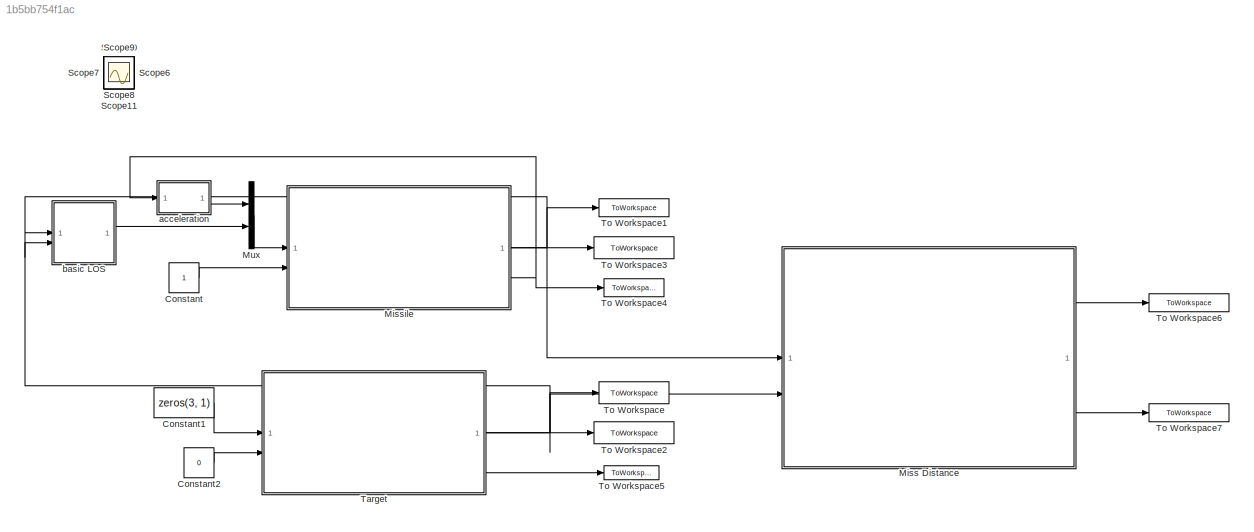
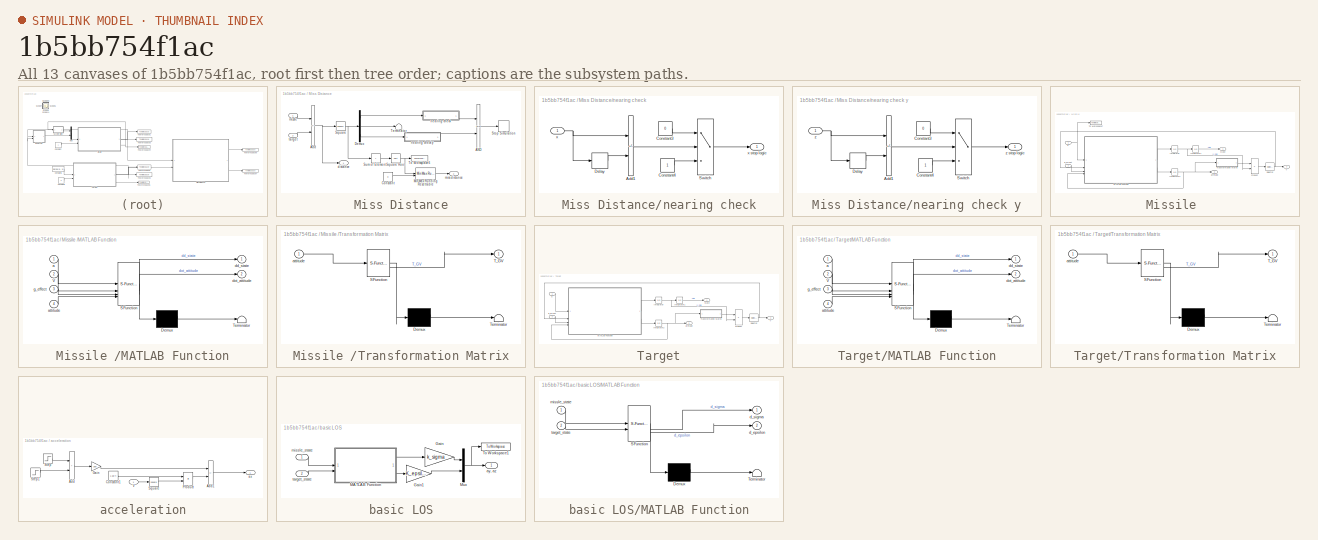
[diagram: thumbnail index - all 13 canvases of the model, root first then tree order]
MODEL slx_1b5bb754f1ac
KIND model
CONFIG AbsTol = auto
CONFIG EnableMultiTasking = off
CONFIG FixedStep = 0.002
CONFIG InitFcn = init; % init script
CONFIG MaxStep = auto
CONFIG MinStep = auto
CONFIG RelTol = 1e-3
CONFIG SampleTimeConstraint = Unconstrained
CONFIG SolverName = ode4
CONFIG StartTime = 0.0
CONFIG StopTime = 20
BLOCK [Constant] Constant
BLOCK [Constant] Constant1
  Value = zeros(3, 1)
BLOCK [Constant] Constant2
  Value = 0
BLOCK [SubSystem] Miss Distance
BLOCK [Logic] Miss Distance/AND
  AllPortsSameDT = off
  IconShape = distinctive
  OutDataTypeStr = boolean
BLOCK [Sum] Miss Distance/Add
  IconShape = rectangular
  Inputs = +-
BLOCK [Constant] Miss Distance/Constant
  Value = 0
BLOCK [Demux] Miss Distance/Demux
  Outputs = 3
BLOCK [Reference] Miss Distance/MinMax Running Resettable  REF=simulink/Math
Operations/MinMax
Running
Resettable
  SourceBlock = simulink/Math\nOperations/MinMax\nRunning\nResettable
  SourceType = MinMax Running Resettable
BLOCK [Math] Miss Distance/Square
  Operator = square
BLOCK [Sqrt] Miss Distance/Square Root
BLOCK [Stop] Miss Distance/Stop Simulation
BLOCK [Sum] Miss Distance/Sum of Elements
  IconShape = rectangular
  Inputs = +
BLOCK [Terminator] Miss Distance/Terminator
BLOCK [ToWorkspace] Miss Distance/To Workspace6
  FixptAsFi = on
  MaxDataPoints = inf
  SampleTime = -1
  Save2DSignal = 2-D array (concatenate along first dimension)
  SaveFormat = Timeseries
  VariableName = distance
BLOCK [Outport] Miss Distance/distance
BLOCK [Outport] Miss Distance/miss distance
  Port = 2
BLOCK [Inport] Miss Distance/missle
BLOCK [SubSystem] Miss Distance/nearing check
BLOCK [SubSystem] Miss Distance/nearing check y
BLOCK [Sum] Miss Distance/nearing check y/Add1
  IconShape = rectangular
  Inputs = -+
BLOCK [Constant] Miss Distance/nearing check y/Constant3
  Value = 0
BLOCK [Constant] Miss Distance/nearing check y/Constant4
BLOCK [Delay] Miss Distance/nearing check y/Delay
  DelayLength = 1
  InitialCondition = inf
  InputPortMap = u0
BLOCK [Switch] Miss Distance/nearing check y/Switch
  Criteria = u2 > Threshold
  InputSameDT = off
  SaturateOnIntegerOverflow = off
BLOCK [Inport] Miss Distance/nearing check y/z
BLOCK [Outport] Miss Distance/nearing check y/z stop logic
BLOCK [Sum] Miss Distance/nearing check/Add1
  IconShape = rectangular
  Inputs = -+
BLOCK [Constant] Miss Distance/nearing check/Constant3
  Value = 0
BLOCK [Constant] Miss Distance/nearing check/Constant4
BLOCK [Delay] Miss Distance/nearing check/Delay
  DelayLength = 1
  InitialCondition = inf
  InputPortMap = u0
BLOCK [Switch] Miss Distance/nearing check/Switch
  Criteria = u2 > Threshold
  InputSameDT = off
  SaturateOnIntegerOverflow = off
BLOCK [Inport] Miss Distance/nearing check/x
BLOCK [Outport] Miss Distance/nearing check/x stop logic
BLOCK [Inport] Miss Distance/target
  Port = 2
BLOCK [SubSystem] Missile 
BLOCK [Integrator] Missile /Integrator
  InitialCondition = d_state_m
BLOCK [Integrator] Missile /Integrator1
  InitialCondition = state_m0
BLOCK [Integrator] Missile /Integrator2
  InitialCondition = attitude_m0
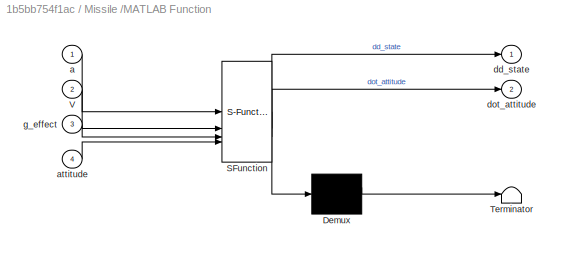
BLOCK [SubSystem] Missile /MATLAB Function
  ErrorFcn = Stateflow.Translate.translate
  LibrarySourceBlock = simulink/User-Defined\nFunctions/MATLAB Function
  PermitHierarchicalResolution = ExplicitOnly
  SFBlockType = MATLAB Function
  TreatAsAtomicUnit = on
BLOCK [Demux] Missile /MATLAB Function/ Demux 
  Outputs = 1
BLOCK [S-Function] Missile /MATLAB Function/ SFunction 
  EnableBusSupport = on
  FunctionName = sf_sfun
  PortCounts = [4 3]
  SFcnIsStateOwnerBlock = off
  SFunctionDeploymentMode = off
  Tag = Stateflow S-Function 2
BLOCK [Terminator] Missile /MATLAB Function/ Terminator 
BLOCK [Inport] Missile /MATLAB Function/V
  Port = 2
BLOCK [Inport] Missile /MATLAB Function/a
BLOCK [Inport] Missile /MATLAB Function/attitude
  Port = 4
BLOCK [Outport] Missile /MATLAB Function/dd_state
BLOCK [Outport] Missile /MATLAB Function/dot_attitude
  Port = 2
BLOCK [Inport] Missile /MATLAB Function/g_effect
  Port = 3
BLOCK [Product] Missile /Product
  Multiplication = Matrix(*)
BLOCK [Selector] Missile /Selector
  IndexOptions = Index vector (dialog)
  Indices = [1]
  InputPortWidth = 3
  OutputSizes = 1
BLOCK [ToWorkspace] Missile /To Workspace7
  FixptAsFi = on
  MaxDataPoints = inf
  SampleTime = -1
  VariableName = a_target
BLOCK [SubSystem] Missile /Transformation Matrix
  ErrorFcn = Stateflow.Translate.translate
  LibrarySourceBlock = simulink/User-Defined\nFunctions/MATLAB Function
  PermitHierarchicalResolution = ExplicitOnly
  SFBlockType = MATLAB Function
  TreatAsAtomicUnit = on
BLOCK [Demux] Missile /Transformation Matrix/ Demux 
  Outputs = 1
BLOCK [S-Function] Missile /Transformation Matrix/ SFunction 
  EnableBusSupport = on
  FunctionName = sf_sfun
  PortCounts = [1 2]
  SFcnIsStateOwnerBlock = off
  SFunctionDeploymentMode = off
  Tag = Stateflow S-Function 1
BLOCK [Terminator] Missile /Transformation Matrix/ Terminator 
BLOCK [Outport] Missile /Transformation Matrix/T_GV
BLOCK [Inport] Missile /Transformation Matrix/attitude
BLOCK [Outport] Missile /V
  Port = 3
BLOCK [Inport] Missile /a
BLOCK [Outport] Missile /attitude
  Port = 2
BLOCK [Inport] Missile /g_effect
  Port = 2
BLOCK [Outport] Missile /state
BLOCK [Mux] Mux
  DisplayOption = bar
  Inputs = 2
BLOCK [Scope] Scope
  Floating = off
  IOType = viewer
  NumInputPorts = 1
  ScopeSpecificationString = Simulink.scopes.TimeScopeBlockCfg('CurrentConfiguration', extmgr.ConfigurationSet(extmgr.Configuration('Core','General UI',true),extmgr.Configuration('Core','Source UI',true),extmgr.Configuration('Sources','WiredSimulink',true,'DataLoggingVariableName','ScopeData1'),extmgr.Configuration('Visuals','Time Domain',true,'SerializedDisplays',{struct('MinYLimReal','-9095.33525','MaxYLimReal','1858.01721'...<+1509ch>
BLOCK [Scope] Scope10
  Floating = off
  IOType = viewer
  NumInputPorts = 1
  ScopeSpecificationString = Simulink.scopes.TimeScopeBlockCfg('CurrentConfiguration', extmgr.ConfigurationSet(extmgr.Configuration('Core','General UI',true),extmgr.Configuration('Core','Source UI',true),extmgr.Configuration('Sources','WiredSimulink',true,'DataLoggingVariableName','ScopeData10'),extmgr.Configuration('Visuals','Time Domain',true,'SerializedDisplays',{struct('MinYLimReal','-0.3927','MaxYLimReal','3.53429','YLab...<+1381ch>
BLOCK [Scope] Scope11
  Floating = off
  IOType = viewer
  NumInputPorts = 1
  ScopeSpecificationString = Simulink.scopes.TimeScopeBlockCfg('CurrentConfiguration', extmgr.ConfigurationSet(extmgr.Configuration('Core','General UI',true),extmgr.Configuration('Core','Source UI',true),extmgr.Configuration('Sources','WiredSimulink',true,'DataLoggingVariableName','ScopeData11'),extmgr.Configuration('Visuals','Time Domain',true,'SerializedDisplays',{struct('MinYLimReal','200.00000','MaxYLimReal','400.00000','...<+1382ch>
BLOCK [Scope] Scope6
  Floating = off
  IOType = viewer
  NumInputPorts = 1
  ScopeSpecificationString = Simulink.scopes.TimeScopeBlockCfg('CurrentConfiguration', extmgr.ConfigurationSet(extmgr.Configuration('Core','General UI',true),extmgr.Configuration('Core','Source UI',true),extmgr.Configuration('Sources','WiredSimulink',true,'DataLoggingVariableName','ScopeData6'),extmgr.Configuration('Visuals','Time Domain',true,'SerializedDisplays',{struct('MinYLimReal','-613.30182','MaxYLimReal','5519.71636',...<+1403ch>
BLOCK [Scope] Scope7
  Floating = off
  IOType = viewer
  NumInputPorts = 1
  ScopeSpecificationString = Simulink.scopes.TimeScopeBlockCfg('CurrentConfiguration', extmgr.ConfigurationSet(extmgr.Configuration('Core','General UI',true),extmgr.Configuration('Core','Source UI',true),extmgr.Configuration('Sources','WiredSimulink',true,'DataLoggingVariableName','ScopeData7'),extmgr.Configuration('Visuals','Time Domain',true,'SerializedDisplays',{struct('MinYLimReal','-4.84579','MaxYLimReal','0.53842','YLab...<+1386ch>
BLOCK [Scope] Scope8
  Floating = off
  IOType = viewer
  NumInputPorts = 1
  ScopeSpecificationString = Simulink.scopes.TimeScopeBlockCfg('CurrentConfiguration', extmgr.ConfigurationSet(extmgr.Configuration('Core','General UI',true),extmgr.Configuration('Core','Source UI',true),extmgr.Configuration('Sources','WiredSimulink',true,'DataLoggingVariableName','ScopeData8'),extmgr.Configuration('Visuals','Time Domain',true,'SerializedDisplays',{struct('MinYLimReal','-120.46733','MaxYLimReal','119.50184','...<+1383ch>
BLOCK [Scope] Scope9
  Floating = off
  IOType = viewer
  NumInputPorts = 1
  ScopeSpecificationString = Simulink.scopes.TimeScopeBlockCfg('CurrentConfiguration', extmgr.ConfigurationSet(extmgr.Configuration('Core','General UI',true),extmgr.Configuration('Core','Source UI',true),extmgr.Configuration('Sources','WiredSimulink',true,'DataLoggingVariableName','ScopeData9'),extmgr.Configuration('Visuals','Time Domain',true,'SerializedDisplays',{struct('MinYLimReal','-1000.00000','MaxYLimReal','9000.00000'...<+1408ch>
BLOCK [SubSystem] Target
BLOCK [Integrator] Target/Integrator
  InitialCondition = d_state_t
BLOCK [Integrator] Target/Integrator1
  InitialCondition = state_t0
BLOCK [Integrator] Target/Integrator2
  InitialCondition = attitude_t0
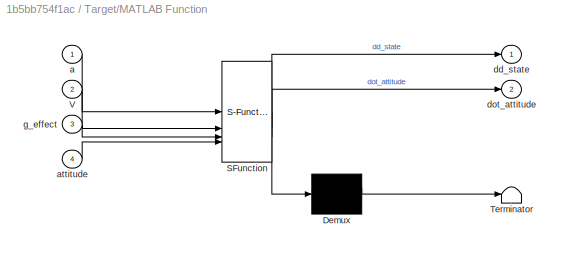
BLOCK [SubSystem] Target/MATLAB Function
  ErrorFcn = Stateflow.Translate.translate
  LibrarySourceBlock = simulink/User-Defined\nFunctions/MATLAB Function
  PermitHierarchicalResolution = ExplicitOnly
  SFBlockType = MATLAB Function
  TreatAsAtomicUnit = on
BLOCK [Demux] Target/MATLAB Function/ Demux 
  Outputs = 1
BLOCK [S-Function] Target/MATLAB Function/ SFunction 
  EnableBusSupport = on
  FunctionName = sf_sfun
  PortCounts = [4 3]
  SFcnIsStateOwnerBlock = off
  SFunctionDeploymentMode = off
  Tag = Stateflow S-Function 3
BLOCK [Terminator] Target/MATLAB Function/ Terminator 
BLOCK [Inport] Target/MATLAB Function/V
  Port = 2
BLOCK [Inport] Target/MATLAB Function/a
BLOCK [Inport] Target/MATLAB Function/attitude
  Port = 4
BLOCK [Outport] Target/MATLAB Function/dd_state
BLOCK [Outport] Target/MATLAB Function/dot_attitude
  Port = 2
BLOCK [Inport] Target/MATLAB Function/g_effect
  Port = 3
BLOCK [Product] Target/Product
  Multiplication = Matrix(*)
BLOCK [Selector] Target/Selector
  IndexOptions = Index vector (dialog)
  Indices = [1]
  InputPortWidth = 3
  OutputSizes = 1
BLOCK [SubSystem] Target/Transformation Matrix
  ErrorFcn = Stateflow.Translate.translate
  LibrarySourceBlock = simulink/User-Defined\nFunctions/MATLAB Function
  PermitHierarchicalResolution = ExplicitOnly
  SFBlockType = MATLAB Function
  TreatAsAtomicUnit = on
BLOCK [Demux] Target/Transformation Matrix/ Demux 
  Outputs = 1
BLOCK [S-Function] Target/Transformation Matrix/ SFunction 
  EnableBusSupport = on
  FunctionName = sf_sfun
  PortCounts = [1 2]
  SFcnIsStateOwnerBlock = off
  SFunctionDeploymentMode = off
  Tag = Stateflow S-Function 4
BLOCK [Terminator] Target/Transformation Matrix/ Terminator 
BLOCK [Outport] Target/Transformation Matrix/T_GV
BLOCK [Inport] Target/Transformation Matrix/attitude
BLOCK [Outport] Target/V
  Port = 3
BLOCK [Inport] Target/a
BLOCK [Outport] Target/attitude
  Port = 2
BLOCK [Inport] Target/g_effect
  Port = 2
BLOCK [Outport] Target/state
BLOCK [ToWorkspace] To Workspace
  FixptAsFi = on
  MaxDataPoints = inf
  SampleTime = -1
  Save2DSignal = 2-D array (concatenate along first dimension)
  SaveFormat = Timeseries
  VariableName = target_state
BLOCK [ToWorkspace] To Workspace1
  FixptAsFi = on
  MaxDataPoints = inf
  SampleTime = -1
  Save2DSignal = 2-D array (concatenate along first dimension)
  SaveFormat = Timeseries
  VariableName = missle_state
BLOCK [ToWorkspace] To Workspace2
  FixptAsFi = on
  MaxDataPoints = inf
  SampleTime = -1
  Save2DSignal = 2-D array (concatenate along first dimension)
  SaveFormat = Timeseries
  VariableName = target_attitude
BLOCK [ToWorkspace] To Workspace3
  FixptAsFi = on
  MaxDataPoints = inf
  SampleTime = -1
  Save2DSignal = 2-D array (concatenate along first dimension)
  SaveFormat = Timeseries
  VariableName = missle_attitude
BLOCK [ToWorkspace] To Workspace4
  FixptAsFi = on
  MaxDataPoints = inf
  SampleTime = -1
  Save2DSignal = 2-D array (concatenate along first dimension)
  SaveFormat = Timeseries
  VariableName = V_missle
BLOCK [ToWorkspace] To Workspace5
  FixptAsFi = on
  MaxDataPoints = inf
  SampleTime = -1
  Save2DSignal = 2-D array (concatenate along first dimension)
  SaveFormat = Timeseries
  VariableName = V_target
BLOCK [ToWorkspace] To Workspace6
  FixptAsFi = on
  MaxDataPoints = inf
  SampleTime = -1
  Save2DSignal = 2-D array (concatenate along first dimension)
  SaveFormat = Timeseries
  VariableName = target_distance
BLOCK [ToWorkspace] To Workspace7
  FixptAsFi = on
  MaxDataPoints = inf
  SampleTime = -1
  Save2DSignal = 2-D array (concatenate along first dimension)
  SaveFormat = Timeseries
  VariableName = miss_distance
BLOCK [SubSystem] acceleration
BLOCK [Sum] acceleration/Add
  IconShape = rectangular
BLOCK [Sum] acceleration/Add1
  IconShape = rectangular
  Inputs = +-
BLOCK [Constant] acceleration/Constant1
  Value = 1.5e-4
BLOCK [Gain] acceleration/Gain
  Gain = 300
BLOCK [Product] acceleration/Product
BLOCK [Math] acceleration/Square
  Operator = square
BLOCK [Step] acceleration/Step
  After = -1
  SampleTime = 0
  Time = 3
BLOCK [Step] acceleration/Step1
  SampleTime = 0
  Time = 0
BLOCK [Inport] acceleration/V
BLOCK [Outport] acceleration/ax
BLOCK [SubSystem] basic LOS
BLOCK [Gain] basic LOS/Gain
  Gain = k_sigma
BLOCK [Gain] basic LOS/Gain1
  Gain = K_epsilon
BLOCK [SubSystem] basic LOS/MATLAB Function
  ErrorFcn = Stateflow.Translate.translate
  LibrarySourceBlock = simulink/User-Defined\nFunctions/MATLAB Function
  PermitHierarchicalResolution = ExplicitOnly
  SFBlockType = MATLAB Function
  TreatAsAtomicUnit = on
BLOCK [Demux] basic LOS/MATLAB Function/ Demux 
  Outputs = 1
BLOCK [S-Function] basic LOS/MATLAB Function/ SFunction 
  EnableBusSupport = on
  FunctionName = sf_sfun
  PortCounts = [2 3]
  SFcnIsStateOwnerBlock = off
  SFunctionDeploymentMode = off
  Tag = Stateflow S-Function 5
BLOCK [Terminator] basic LOS/MATLAB Function/ Terminator 
BLOCK [Outport] basic LOS/MATLAB Function/d_epsilon
  Port = 2
BLOCK [Outport] basic LOS/MATLAB Function/d_sigma
BLOCK [Inport] basic LOS/MATLAB Function/missle_state
BLOCK [Inport] basic LOS/MATLAB Function/target_state
  Port = 2
BLOCK [Mux] basic LOS/Mux
  DisplayOption = bar
  Inputs = 2
BLOCK [ToWorkspace] basic LOS/To Workspace1
  FixptAsFi = on
  MaxDataPoints = inf
  SampleTime = -1
  Save2DSignal = 2-D array (concatenate along first dimension)
  SaveFormat = Timeseries
  VariableName = command
BLOCK [Outport] basic LOS/ay, az
BLOCK [Inport] basic LOS/missle_state
BLOCK [Inport] basic LOS/target_state
  Port = 2
LINE Constant1:1 -> Target:1
LINE Constant2:1 -> Target:2
LINE Constant:1 -> Missile :2
LINE Miss Distance/AND:1 -> Miss Distance/Stop Simulation:1
NET Miss Distance/Add:1 -> Miss Distance/Square:1, Miss Distance/distance:1
LINE Miss Distance/Constant:1 -> Miss Distance/MinMax Running Resettable:2
LINE Miss Distance/Demux:1 -> Miss Distance/nearing check:1
LINE Miss Distance/Demux:2 -> Miss Distance/Terminator:1
LINE Miss Distance/Demux:3 -> Miss Distance/nearing check y:1
LINE Miss Distance/MinMax Running Resettable:1 -> Miss Distance/miss distance:1
NET Miss Distance/Square Root:1 -> Miss Distance/MinMax Running Resettable:1, Miss Distance/To Workspace6:1
NET Miss Distance/Square:1 -> Miss Distance/Demux:1, Miss Distance/Sum of Elements:1
LINE Miss Distance/Sum of Elements:1 -> Miss Distance/Square Root:1
LINE Miss Distance/missle:1 -> Miss Distance/Add:1
LINE Miss Distance/nearing check y/Add1:1 -> Miss Distance/nearing check y/Switch:2
LINE Miss Distance/nearing check y/Constant3:1 -> Miss Distance/nearing check y/Switch:1
LINE Miss Distance/nearing check y/Constant4:1 -> Miss Distance/nearing check y/Switch:3
LINE Miss Distance/nearing check y/Delay:1 -> Miss Distance/nearing check y/Add1:2
LINE Miss Distance/nearing check y/Switch:1 -> Miss Distance/nearing check y/z stop logic:1
NET Miss Distance/nearing check y/z:1 -> Miss Distance/nearing check y/Add1:1, Miss Distance/nearing check y/Delay:1
LINE Miss Distance/nearing check y:1 -> Miss Distance/AND:2
LINE Miss Distance/nearing check/Add1:1 -> Miss Distance/nearing check/Switch:2
LINE Miss Distance/nearing check/Constant3:1 -> Miss Distance/nearing check/Switch:1
LINE Miss Distance/nearing check/Constant4:1 -> Miss Distance/nearing check/Switch:3
LINE Miss Distance/nearing check/Delay:1 -> Miss Distance/nearing check/Add1:2
LINE Miss Distance/nearing check/Switch:1 -> Miss Distance/nearing check/x stop logic:1
NET Miss Distance/nearing check/x:1 -> Miss Distance/nearing check/Add1:1, Miss Distance/nearing check/Delay:1
LINE Miss Distance/nearing check:1 -> Miss Distance/AND:1
LINE Miss Distance/target:1 -> Miss Distance/Add:2
LINE Miss Distance:1 -> To Workspace6:1
LINE Miss Distance:2 -> To Workspace7:1
LINE Missile /Integrator1:1 -> Missile /state:1
NET Missile /Integrator2:1 -> Missile /MATLAB Function:4, Missile /Transformation Matrix:1, Missile /attitude:1
NET Missile /Integrator:1 -> Missile /Integrator1:1, Missile /Product:2
LINE Missile /MATLAB Function:1 -> Missile /Integrator:1
LINE Missile /MATLAB Function:2 -> Missile /Integrator2:1
LINE Missile /Product:1 -> Missile /Selector:1
NET Missile /Selector:1 -> Missile /MATLAB Function:2, Missile /V:1
LINE Missile /Transformation Matrix:1 -> Missile /Product:1
NET Missile /a:1 -> Missile /MATLAB Function:1, Missile /To Workspace7:1
LINE Missile /g_effect:1 -> Missile /MATLAB Function:3
NET Missile :1 -> Miss Distance:1, To Workspace1:1, basic LOS:1
LINE Missile :2 -> To Workspace3:1
NET Missile :3 -> To Workspace4:1, acceleration:1
LINE Mux:1 -> Missile :1
LINE Target/Integrator1:1 -> Target/state:1
NET Target/Integrator2:1 -> Target/MATLAB Function:4, Target/Transformation Matrix:1, Target/attitude:1
NET Target/Integrator:1 -> Target/Integrator1:1, Target/Product:2
LINE Target/MATLAB Function:1 -> Target/Integrator:1
LINE Target/MATLAB Function:2 -> Target/Integrator2:1
LINE Target/Product:1 -> Target/Selector:1
NET Target/Selector:1 -> Target/MATLAB Function:2, Target/V:1
LINE Target/Transformation Matrix:1 -> Target/Product:1
LINE Target/a:1 -> Target/MATLAB Function:1
LINE Target/g_effect:1 -> Target/MATLAB Function:3
NET Target:1 -> Miss Distance:2, To Workspace:1, basic LOS:2
LINE Target:2 -> To Workspace2:1
LINE Target:3 -> To Workspace5:1
LINE acceleration/Add1:1 -> acceleration/ax:1
LINE acceleration/Add:1 -> acceleration/Gain:1
LINE acceleration/Constant1:1 -> acceleration/Product:1
LINE acceleration/Gain:1 -> acceleration/Add1:1
LINE acceleration/Product:1 -> acceleration/Add1:2
LINE acceleration/Square:1 -> acceleration/Product:2
LINE acceleration/Step1:1 -> acceleration/Add:2
LINE acceleration/Step:1 -> acceleration/Add:1
LINE acceleration/V:1 -> acceleration/Square:1
LINE acceleration:1 -> Mux:1
LINE basic LOS/Gain1:1 -> basic LOS/Mux:2
LINE basic LOS/Gain:1 -> basic LOS/Mux:1
LINE basic LOS/MATLAB Function:1 -> basic LOS/Gain:1
LINE basic LOS/MATLAB Function:2 -> basic LOS/Gain1:1
NET basic LOS/Mux:1 -> basic LOS/To Workspace1:1, basic LOS/ay, az:1
LINE basic LOS/missle_state:1 -> basic LOS/MATLAB Function:1
LINE basic LOS/target_state:1 -> basic LOS/MATLAB Function:2
LINE basic LOS:1 -> Mux:2
note: NET lines group one-source signal fan-out (src -> all destinations, sorted); 1:1 wires keep LINE
CHART Missile /Transformation Matrix states=1 transitions=1
  STATE_LABEL 'eML_blk_kernel()'
  STATE_LABEL 'SCRIPT:\nfunction T_GV = fcn(attitude)\ntheta = attitude(1);\npsi = attitude(2);\n\nT_GV = [cos(theta)*cos(psi)   cos(theta)*sin(psi)   sin(theta)\n            -sin(psi)               cos(psi)            0\n        -sin(theta)*cos(psi)  -sin(theta)*sin(psi)   cos(theta) ];\n'
CHART Missile /MATLAB Function states=1 transitions=1
  STATE_LABEL 'eML_blk_kernel()'
  STATE_LABEL 'SCRIPT:\nfunction [dd_state, dot_attitude] =...\n    fcn(a, V, g_effect, attitude)\na_x = a(1);\na_y = a(2);\na_z = a(3);\n\ntheta = attitude(1);\npsi = attitude(2);\ng = 9.81;\ng = g*g_effect;\n\nddot_x = a_x*cos(theta)*cos(psi) - a_y*sin(psi) - a_z*sin(theta)*cos(psi);\nddot_y = a_x*cos(theta)*sin(psi) + a_y*cos(psi) - a_z*sin(theta)*sin(psi);\nddot_z = a_x*sin(theta) + a_z*cos(theta) - g;\n\ndd_state = [ddot_x...<+129ch>'
CHART Target/MATLAB Function states=1 transitions=1
  STATE_LABEL 'eML_blk_kernel()'
  STATE_LABEL 'SCRIPT:\nfunction [dd_state, dot_attitude] =...\n    fcn(a, V, g_effect, attitude)\na_x = a(1);\na_y = a(2);\na_z = a(3);\n\ntheta = attitude(1);\npsi = attitude(2);\ng = 9.81;\ng = g*g_effect;\n\nddot_x = a_x*cos(theta)*cos(psi) - a_y*sin(psi) - a_z*sin(theta)*cos(psi);\nddot_y = a_x*cos(theta)*sin(psi) + a_y*cos(psi) - a_z*sin(theta)*sin(psi);\nddot_z = a_x*sin(theta) + a_z*cos(theta) - g;\n\ndd_state = [ddot_x...<+129ch>'
CHART Target/Transformation Matrix states=1 transitions=1
  STATE_LABEL 'eML_blk_kernel()'
  STATE_LABEL "SCRIPT:\nfunction T_GV = fcn(attitude)\ntheta = attitude(1);\npsi = attitude(2);\n\nT_VG = [cos(theta)*cos(psi)   cos(theta)*sin(psi)   sin(theta)\n            -sin(psi)               cos(psi)            0\n        -sin(theta)*cos(psi)  -sin(theta)*sin(psi)   cos(theta) ];\n\nT_GV = T_VG';\n"
CHART basic LOS/MATLAB Function states=1 transitions=1
  STATE_LABEL 'eML_blk_kernel()'
  STATE_LABEL 'SCRIPT:\nfunction [d_sigma, d_epsilon] = fcn(missle_state, target_state)\n\n[sigma_m, epsilon_m] = angle_calculator(missle_state);\n[sigma_t, epsilon_t] = angle_calculator(target_state);\n\nd_epsilon = norm(missle_state)*(epsilon_t - epsilon_m);\nd_sigma = norm(missle_state)*(sigma_t - sigma_m)*cos(epsilon_t);\n\nend\n\n\nfunction [sigma, epsilon] = angle_calculator(state)\n    if norm(state) == 0\n        epsi...<+135ch>'
CHART  states=0 transitions=0
CHART  states=0 transitions=0
CHART  states=0 transitions=0
CHART  states=0 transitions=0
CHART  states=0 transitions=0
